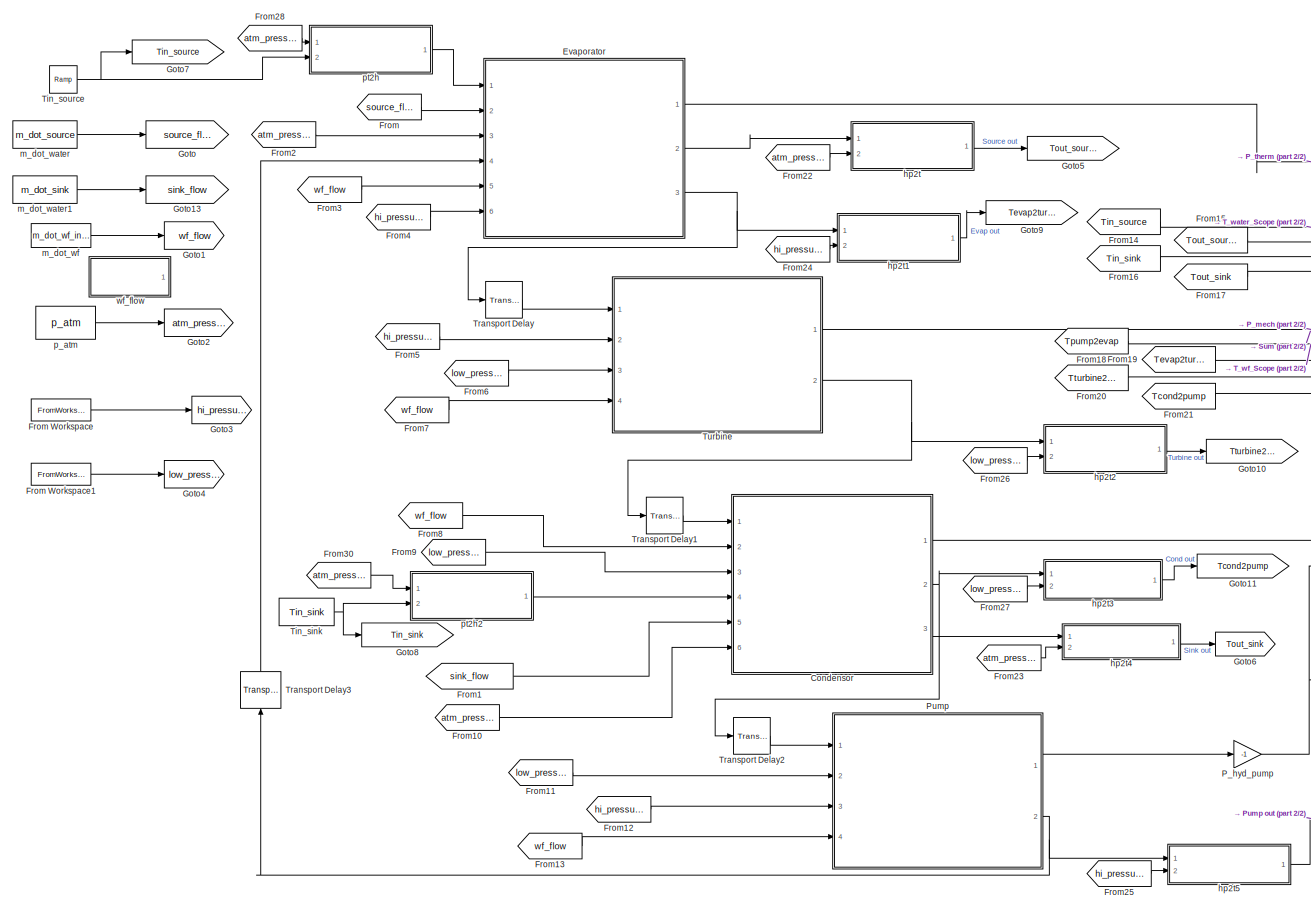
[diagram: root canvas - part 1/2, most of the canvas]
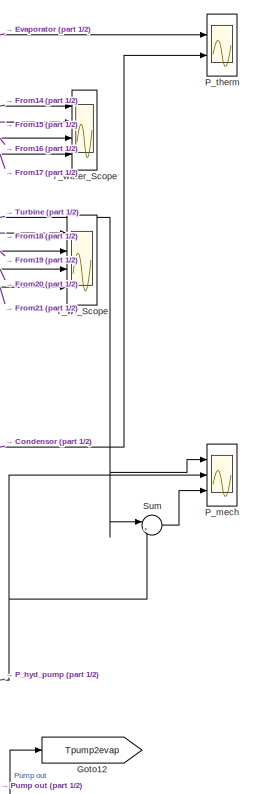
[diagram: root canvas - part 2/2, right side, full height]
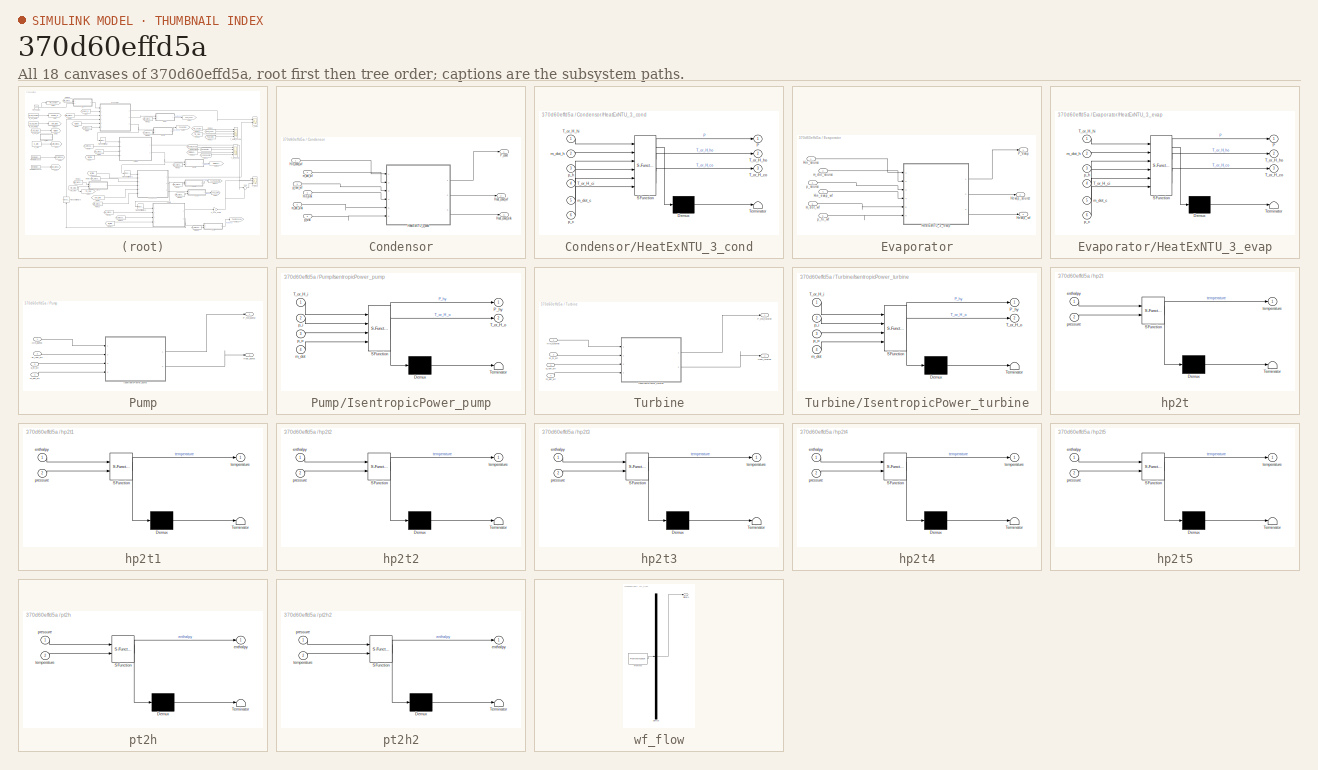
[diagram: thumbnail index - all 18 canvases of the model, root first then tree order]
MODEL slx_370d60effd5a
KIND model
CONFIG AbsTol = auto
CONFIG EnableMultiTasking = off
CONFIG FixedStep = .1
CONFIG MaxStep = auto
CONFIG MinStep = auto
CONFIG RelTol = 1e-3
CONFIG SampleTimeConstraint = Unconstrained
CONFIG Solver = FixedStepAuto
CONFIG SolverName = FixedStepAuto
CONFIG StartTime = 0.0
CONFIG StopTime = 75
BLOCK [SubSystem] Condensor
  Ports = [6, 3]
  RequestExecContextInheritance = off
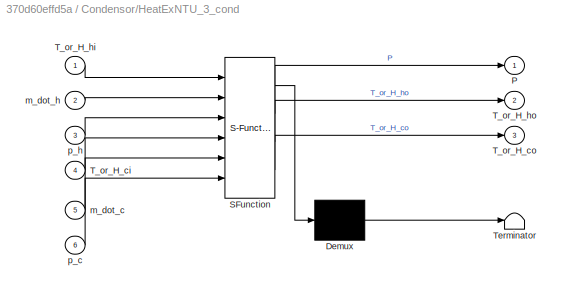
BLOCK [SubSystem] Condensor/HeatExNTU_3_cond
  Description = %HeatExNTU Summary \n%   This function calculates flow and outlet temperatures of a heat exchanger\n%   using the Number of Transfer Units (NTU) method as described in\n%   Fundementals of Heat and Mass Transfer by F. P. Incropera, D. P.\n%   DeWitt, T. L. Bergman & A. S. Lavine. The method can be used when only\n%   the inlet tempertures are known as opposed to inlet and outlet\n%   temperatures.\n%\n%  ...<+3098ch>
  ErrorFcn = Stateflow.Translate.translate
  PermitHierarchicalResolution = ExplicitOnly
  Ports = [6, 3]
  RequestExecContextInheritance = off
  SFBlockType = MATLAB Function
  TreatAsAtomicUnit = on
BLOCK [Demux] Condensor/HeatExNTU_3_cond/ Demux 
  Outputs = 1
  Ports = [1, 1]
BLOCK [S-Function] Condensor/HeatExNTU_3_cond/ SFunction 
  EnableBusSupport = on
  FunctionName = sf_sfun
  Parameters = A,HeatExType,T_or_H,U,fluid_c,fluid_h
  PortCounts = [6 4]
  Ports = [6, 4]
  SFcnIsStateOwnerBlock = off
  SFunctionDeploymentMode = off
  Tag = Stateflow S-Function ORC_test_simu 3
BLOCK [Terminator] Condensor/HeatExNTU_3_cond/ Terminator 
BLOCK [Outport] Condensor/HeatExNTU_3_cond/P
  IconDisplay = Port number
BLOCK [Inport] Condensor/HeatExNTU_3_cond/T_or_H_ci
  IconDisplay = Port number
  Port = 4
BLOCK [Outport] Condensor/HeatExNTU_3_cond/T_or_H_co
  IconDisplay = Port number
  Port = 3
BLOCK [Inport] Condensor/HeatExNTU_3_cond/T_or_H_hi
  IconDisplay = Port number
BLOCK [Outport] Condensor/HeatExNTU_3_cond/T_or_H_ho
  IconDisplay = Port number
  Port = 2
BLOCK [Inport] Condensor/HeatExNTU_3_cond/m_dot_c
  IconDisplay = Port number
  Port = 5
BLOCK [Inport] Condensor/HeatExNTU_3_cond/m_dot_h
  IconDisplay = Port number
  Port = 2
BLOCK [Inport] Condensor/HeatExNTU_3_cond/p_c
  IconDisplay = Port number
  Port = 6
BLOCK [Inport] Condensor/HeatExNTU_3_cond/p_h
  IconDisplay = Port number
  Port = 3
BLOCK [Inport] Condensor/Hin_cond_wf
  IconDisplay = Port number
BLOCK [Inport] Condensor/Hin_sink
  IconDisplay = Port number
  Port = 4
BLOCK [Outport] Condensor/Hout_cond_sink
  IconDisplay = Port number
  Port = 3
BLOCK [Outport] Condensor/Hout_cond_wf
  IconDisplay = Port number
  Port = 2
BLOCK [Outport] Condensor/P_cond
  IconDisplay = Port number
BLOCK [Inport] Condensor/m_dot_sink
  IconDisplay = Port number
  Port = 5
BLOCK [Inport] Condensor/m_dot_wf
  IconDisplay = Port number
  Port = 2
BLOCK [Inport] Condensor/p_low_wf
  IconDisplay = Port number
  Port = 3
BLOCK [Inport] Condensor/p_sink
  IconDisplay = Port number
  Port = 6
BLOCK [SubSystem] Evaporator
  Ports = [6, 3]
  RequestExecContextInheritance = off
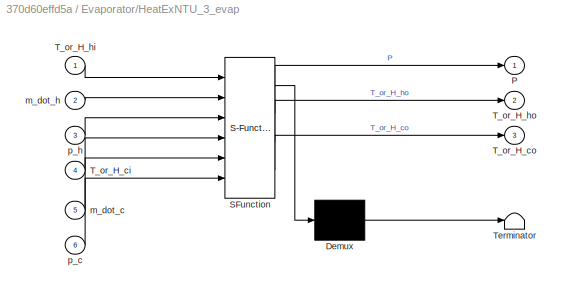
BLOCK [SubSystem] Evaporator/HeatExNTU_3_evap
  Description = %HeatExNTU Summary \n%   This function calculates flow and outlet temperatures of a heat exchanger\n%   using the Number of Transfer Units (NTU) method as described in\n%   Fundementals of Heat and Mass Transfer by F. P. Incropera, D. P.\n%   DeWitt, T. L. Bergman & A. S. Lavine. The method can be used when only\n%   the inlet tempertures are known as opposed to inlet and outlet\n%   temperatures.\n%\n%  ...<+3098ch>
  ErrorFcn = Stateflow.Translate.translate
  PermitHierarchicalResolution = ExplicitOnly
  Ports = [6, 3]
  RequestExecContextInheritance = off
  SFBlockType = MATLAB Function
  TreatAsAtomicUnit = on
BLOCK [Demux] Evaporator/HeatExNTU_3_evap/ Demux 
  Outputs = 1
  Ports = [1, 1]
BLOCK [S-Function] Evaporator/HeatExNTU_3_evap/ SFunction 
  EnableBusSupport = on
  FunctionName = sf_sfun
  Parameters = A,HeatExType,T_or_H,U,fluid_c,fluid_h
  PortCounts = [6 4]
  Ports = [6, 4]
  SFcnIsStateOwnerBlock = off
  SFunctionDeploymentMode = off
  Tag = Stateflow S-Function ORC_test_simu 2
BLOCK [Terminator] Evaporator/HeatExNTU_3_evap/ Terminator 
BLOCK [Outport] Evaporator/HeatExNTU_3_evap/P
  IconDisplay = Port number
BLOCK [Inport] Evaporator/HeatExNTU_3_evap/T_or_H_ci
  IconDisplay = Port number
  Port = 4
BLOCK [Outport] Evaporator/HeatExNTU_3_evap/T_or_H_co
  IconDisplay = Port number
  Port = 3
BLOCK [Inport] Evaporator/HeatExNTU_3_evap/T_or_H_hi
  IconDisplay = Port number
BLOCK [Outport] Evaporator/HeatExNTU_3_evap/T_or_H_ho
  IconDisplay = Port number
  Port = 2
BLOCK [Inport] Evaporator/HeatExNTU_3_evap/m_dot_c
  IconDisplay = Port number
  Port = 5
BLOCK [Inport] Evaporator/HeatExNTU_3_evap/m_dot_h
  IconDisplay = Port number
  Port = 2
BLOCK [Inport] Evaporator/HeatExNTU_3_evap/p_c
  IconDisplay = Port number
  Port = 6
BLOCK [Inport] Evaporator/HeatExNTU_3_evap/p_h
  IconDisplay = Port number
  Port = 3
BLOCK [Outport] Evaporator/Hevap_source
  IconDisplay = Port number
  Port = 2
BLOCK [Outport] Evaporator/Hevap_wf
  IconDisplay = Port number
  Port = 3
BLOCK [Inport] Evaporator/Hin_evap_wf
  IconDisplay = Port number
  Port = 4
BLOCK [Inport] Evaporator/Hin_source
  IconDisplay = Port number
BLOCK [Outport] Evaporator/P_evap
  IconDisplay = Port number
BLOCK [Inport] Evaporator/m_dot_source
  IconDisplay = Port number
  Port = 2
BLOCK [Inport] Evaporator/m_dot_wf
  IconDisplay = Port number
  Port = 5
BLOCK [Inport] Evaporator/p_hi_wf
  IconDisplay = Port number
  Port = 6
BLOCK [Inport] Evaporator/p_source
  IconDisplay = Port number
  Port = 3
BLOCK [From] From
  GotoTag = source_flow
BLOCK [FromWorkspace] From Workspace
  SampleTime = 0
  VariableName = p_hi
  ZeroCross = on
BLOCK [FromWorkspace] From Workspace1
  SampleTime = 0
  VariableName = p_low
  ZeroCross = on
BLOCK [From] From1
  GotoTag = sink_flow
BLOCK [From] From10
  GotoTag = atm_pressure
BLOCK [From] From11
  GotoTag = low_pressure
BLOCK [From] From12
  GotoTag = hi_pressure
BLOCK [From] From13
  GotoTag = wf_flow
BLOCK [From] From14
  GotoTag = Tin_source
BLOCK [From] From15
  GotoTag = Tout_source
BLOCK [From] From16
  GotoTag = Tin_sink
BLOCK [From] From17
  GotoTag = Tout_sink
BLOCK [From] From18
  GotoTag = Tpump2evap
BLOCK [From] From19
  GotoTag = Tevap2turbine
BLOCK [From] From2
  GotoTag = atm_pressure
BLOCK [From] From20
  GotoTag = Tturbine2cond
BLOCK [From] From21
  GotoTag = Tcond2pump
BLOCK [From] From22
  GotoTag = atm_pressure
BLOCK [From] From23
  GotoTag = atm_pressure
BLOCK [From] From24
  GotoTag = hi_pressure
BLOCK [From] From25
  GotoTag = hi_pressure
BLOCK [From] From26
  GotoTag = low_pressure
BLOCK [From] From27
  GotoTag = low_pressure
BLOCK [From] From28
  GotoTag = atm_pressure
BLOCK [From] From3
  GotoTag = wf_flow
BLOCK [From] From30
  GotoTag = atm_pressure
BLOCK [From] From4
  GotoTag = hi_pressure
BLOCK [From] From5
  GotoTag = hi_pressure
BLOCK [From] From6
  GotoTag = low_pressure
BLOCK [From] From7
  GotoTag = wf_flow
BLOCK [From] From8
  GotoTag = wf_flow
BLOCK [From] From9
  GotoTag = low_pressure
BLOCK [Goto] Goto
  GotoTag = source_flow
BLOCK [Goto] Goto1
  GotoTag = wf_flow
BLOCK [Goto] Goto10
  GotoTag = Tturbine2cond
BLOCK [Goto] Goto11
  GotoTag = Tcond2pump
BLOCK [Goto] Goto12
  GotoTag = Tpump2evap
BLOCK [Goto] Goto13
  GotoTag = sink_flow
BLOCK [Goto] Goto2
  GotoTag = atm_pressure
BLOCK [Goto] Goto3
  GotoTag = hi_pressure
BLOCK [Goto] Goto4
  GotoTag = low_pressure
BLOCK [Goto] Goto5
  GotoTag = Tout_source
BLOCK [Goto] Goto6
  GotoTag = Tout_sink
BLOCK [Goto] Goto7
  GotoTag = Tin_source
BLOCK [Goto] Goto8
  GotoTag = Tin_sink
BLOCK [Goto] Goto9
  GotoTag = Tevap2turbine
BLOCK [Gain] P_hyd_pump
  Gain = -1
  OutDataTypeStr = Inherit: Inherit via internal rule
  ParamDataTypeStr = Inherit: Inherit via internal rule
  SaturateOnIntegerOverflow = off
BLOCK [Scope] P_mech
  Floating = off
  NumInputPorts = 3
  Ports = [3]
  ScopeSpecificationString = Simulink.scopes.TimeScopeBlockCfg('CurrentConfiguration', extmgr.ConfigurationSet(extmgr.Configuration('Core','General UI',true),extmgr.Configuration('Core','Source UI',true),extmgr.Configuration('Sources','WiredSimulink',true,'DataLoggingVariableName','ScopeData1'),extmgr.Configuration('Visuals','Time Domain',true,'SerializedDisplays',{struct('MinYLimReal','-897.38911','MaxYLimReal','52162.90094'...<+1897ch>
BLOCK [Scope] P_therm
  Floating = off
  NumInputPorts = 2
  Ports = [2]
  ScopeSpecificationString = Simulink.scopes.TimeScopeBlockCfg('CurrentConfiguration', extmgr.ConfigurationSet(extmgr.Configuration('Core','General UI',true),extmgr.Configuration('Core','Source UI',true),extmgr.Configuration('Sources','WiredSimulink',true),extmgr.Configuration('Visuals','Time Domain',true,'SerializedDisplays',{struct('MinYLimReal','-342536.61594','MaxYLimReal','660607.75159','YLabelReal','','MinYLimMag','    ...<+1843ch>
BLOCK [SubSystem] Pump
  Ports = [4, 2]
  RequestExecContextInheritance = off
BLOCK [Inport] Pump/Hin_pump
  IconDisplay = Port number
BLOCK [Outport] Pump/Hout_pump
  IconDisplay = Port number
  Port = 2
BLOCK [SubSystem] Pump/IsentropicPower_pump
  ErrorFcn = Stateflow.Translate.translate
  PermitHierarchicalResolution = ExplicitOnly
  Ports = [4, 2]
  RequestExecContextInheritance = off
  SFBlockType = MATLAB Function
  TreatAsAtomicUnit = on
BLOCK [Demux] Pump/IsentropicPower_pump/ Demux 
  Outputs = 1
  Ports = [1, 1]
BLOCK [S-Function] Pump/IsentropicPower_pump/ SFunction 
  EnableBusSupport = on
  FunctionName = sf_sfun
  Parameters = T_or_H,fluid,isen_eff
  PortCounts = [4 3]
  Ports = [4, 3]
  SFcnIsStateOwnerBlock = off
  SFunctionDeploymentMode = off
  Tag = Stateflow S-Function ORC_test_simu 4
BLOCK [Terminator] Pump/IsentropicPower_pump/ Terminator 
BLOCK [Outport] Pump/IsentropicPower_pump/P_hy
  IconDisplay = Port number
BLOCK [Inport] Pump/IsentropicPower_pump/T_or_H_i
  IconDisplay = Port number
BLOCK [Outport] Pump/IsentropicPower_pump/T_or_H_o
  IconDisplay = Port number
  Port = 2
BLOCK [Inport] Pump/IsentropicPower_pump/m_dot
  IconDisplay = Port number
  Port = 4
BLOCK [Inport] Pump/IsentropicPower_pump/p_i
  IconDisplay = Port number
  Port = 2
BLOCK [Inport] Pump/IsentropicPower_pump/p_o
  IconDisplay = Port number
  Port = 3
BLOCK [Outport] Pump/P_hyd_pump
  IconDisplay = Port number
BLOCK [Inport] Pump/m_dot_wf
  IconDisplay = Port number
  Port = 4
BLOCK [Inport] Pump/p_hi_wf
  IconDisplay = Port number
  Port = 3
BLOCK [Inport] Pump/pi_low_wf
  IconDisplay = Port number
  Port = 2
BLOCK [Sum] Sum
  IconShape = round
  InputSameDT = off
  Inputs = |+-
  OutDataTypeStr = Inherit: Inherit via internal rule
  Ports = [2, 1]
  SaturateOnIntegerOverflow = off
BLOCK [Scope] T_water_Scope
  Floating = off
  NumInputPorts = 4
  Ports = [4]
  ScopeSpecificationString = Simulink.scopes.TimeScopeBlockCfg('CurrentConfiguration', extmgr.ConfigurationSet(extmgr.Configuration('Core','General UI',true),extmgr.Configuration('Core','Source UI',true),extmgr.Configuration('Sources','WiredSimulink',true,'DataLoggingVariableName','ScopeData1'),extmgr.Configuration('Visuals','Time Domain',true,'SerializedDisplays',{struct('MinYLimReal','269.76497','MaxYLimReal','374.98632','Y...<+1879ch>
BLOCK [Scope] T_wf_Scope
  Floating = off
  NumInputPorts = 4
  Ports = [4]
  ScopeSpecificationString = Simulink.scopes.TimeScopeBlockCfg('CurrentConfiguration', extmgr.ConfigurationSet(extmgr.Configuration('Core','General UI',true),extmgr.Configuration('Core','Source UI',true),extmgr.Configuration('Sources','WiredSimulink',true,'DataLoggingVariableName','ScopeData2'),extmgr.Configuration('Visuals','Time Domain',true,'SerializedDisplays',{struct('MinYLimReal','258.31875','MaxYLimReal','433.03188','Y...<+1884ch>
BLOCK [Constant] Tin_sink
  Value = Tin_sink
BLOCK [Reference] Tin_source  REF=simulink/Sources/Ramp
  Ports = [0, 1]
  SourceBlock = simulink/Sources/Ramp
  SourceProductBaseCode = SL
  SourceProductName = Simulink
  SourceType = Ramp
BLOCK [TransportDelay] Transport Delay
  Commented = through
  DelayTime = .02
  InitialOutput = 363
  Ports = [1, 1]
BLOCK [TransportDelay] Transport Delay1
  Commented = through
  DelayTime = .02
  InitialOutput = 363
  Ports = [1, 1]
BLOCK [TransportDelay] Transport Delay2
  Commented = through
  DelayTime = .02
  InitialOutput = 306
  Ports = [1, 1]
BLOCK [TransportDelay] Transport Delay3
  DelayTime = .02
  InitialOutput = 2.3e+05
  Ports = [1, 1]
  TransDelayFeedthrough = on
BLOCK [SubSystem] Turbine
  Ports = [4, 2]
  RequestExecContextInheritance = off
BLOCK [Inport] Turbine/Hin_turbine
  IconDisplay = Port number
BLOCK [Outport] Turbine/Hout_turbine
  IconDisplay = Port number
  Port = 2
BLOCK [SubSystem] Turbine/IsentropicPower_turbine
  ErrorFcn = Stateflow.Translate.translate
  PermitHierarchicalResolution = ExplicitOnly
  Ports = [4, 2]
  RequestExecContextInheritance = off
  SFBlockType = MATLAB Function
  TreatAsAtomicUnit = on
BLOCK [Demux] Turbine/IsentropicPower_turbine/ Demux 
  Outputs = 1
  Ports = [1, 1]
BLOCK [S-Function] Turbine/IsentropicPower_turbine/ SFunction 
  EnableBusSupport = on
  FunctionName = sf_sfun
  Parameters = T_or_H,fluid,isen_eff
  PortCounts = [4 3]
  Ports = [4, 3]
  SFcnIsStateOwnerBlock = off
  SFunctionDeploymentMode = off
  Tag = Stateflow S-Function ORC_test_simu 1
BLOCK [Terminator] Turbine/IsentropicPower_turbine/ Terminator 
BLOCK [Outport] Turbine/IsentropicPower_turbine/P_hy
  IconDisplay = Port number
BLOCK [Inport] Turbine/IsentropicPower_turbine/T_or_H_i
  IconDisplay = Port number
BLOCK [Outport] Turbine/IsentropicPower_turbine/T_or_H_o
  IconDisplay = Port number
  Port = 2
BLOCK [Inport] Turbine/IsentropicPower_turbine/m_dot
  IconDisplay = Port number
  Port = 4
BLOCK [Inport] Turbine/IsentropicPower_turbine/p_i
  IconDisplay = Port number
  Port = 2
BLOCK [Inport] Turbine/IsentropicPower_turbine/p_o
  IconDisplay = Port number
  Port = 3
BLOCK [Outport] Turbine/P_hyd_turbine
  IconDisplay = Port number
BLOCK [Inport] Turbine/m_dot_wf
  IconDisplay = Port number
  Port = 4
BLOCK [Inport] Turbine/p_low_wf
  IconDisplay = Port number
  Port = 3
BLOCK [Inport] Turbine/pi_hi_wf
  IconDisplay = Port number
  Port = 2
BLOCK [SubSystem] hp2t
  ErrorFcn = Stateflow.Translate.translate
  PermitHierarchicalResolution = ExplicitOnly
  Ports = [2, 1]
  RequestExecContextInheritance = off
  SFBlockType = MATLAB Function
  TreatAsAtomicUnit = on
BLOCK [Demux] hp2t/ Demux 
  Outputs = 1
  Ports = [1, 1]
BLOCK [S-Function] hp2t/ SFunction 
  EnableBusSupport = on
  FunctionName = sf_sfun
  Parameters = fluid_handle
  PortCounts = [2 2]
  Ports = [2, 2]
  SFcnIsStateOwnerBlock = off
  SFunctionDeploymentMode = off
  Tag = Stateflow S-Function ORC_test_simu 5
BLOCK [Terminator] hp2t/ Terminator 
BLOCK [Inport] hp2t/enthalpy
  IconDisplay = Port number
BLOCK [Inport] hp2t/pressure
  IconDisplay = Port number
  Port = 2
BLOCK [Outport] hp2t/temperature
  IconDisplay = Port number
BLOCK [SubSystem] hp2t1
  ErrorFcn = Stateflow.Translate.translate
  PermitHierarchicalResolution = ExplicitOnly
  Ports = [2, 1]
  RequestExecContextInheritance = off
  SFBlockType = MATLAB Function
  TreatAsAtomicUnit = on
BLOCK [Demux] hp2t1/ Demux 
  Outputs = 1
  Ports = [1, 1]
BLOCK [S-Function] hp2t1/ SFunction 
  EnableBusSupport = on
  FunctionName = sf_sfun
  Parameters = fluid_handle
  PortCounts = [2 2]
  Ports = [2, 2]
  SFcnIsStateOwnerBlock = off
  SFunctionDeploymentMode = off
  Tag = Stateflow S-Function ORC_test_simu 6
BLOCK [Terminator] hp2t1/ Terminator 
BLOCK [Inport] hp2t1/enthalpy
  IconDisplay = Port number
BLOCK [Inport] hp2t1/pressure
  IconDisplay = Port number
  Port = 2
BLOCK [Outport] hp2t1/temperature
  IconDisplay = Port number
BLOCK [SubSystem] hp2t2
  ErrorFcn = Stateflow.Translate.translate
  PermitHierarchicalResolution = ExplicitOnly
  Ports = [2, 1]
  RequestExecContextInheritance = off
  SFBlockType = MATLAB Function
  TreatAsAtomicUnit = on
BLOCK [Demux] hp2t2/ Demux 
  Outputs = 1
  Ports = [1, 1]
BLOCK [S-Function] hp2t2/ SFunction 
  EnableBusSupport = on
  FunctionName = sf_sfun
  Parameters = fluid_handle
  PortCounts = [2 2]
  Ports = [2, 2]
  SFcnIsStateOwnerBlock = off
  SFunctionDeploymentMode = off
  Tag = Stateflow S-Function ORC_test_simu 7
BLOCK [Terminator] hp2t2/ Terminator 
BLOCK [Inport] hp2t2/enthalpy
  IconDisplay = Port number
BLOCK [Inport] hp2t2/pressure
  IconDisplay = Port number
  Port = 2
BLOCK [Outport] hp2t2/temperature
  IconDisplay = Port number
BLOCK [SubSystem] hp2t3
  ErrorFcn = Stateflow.Translate.translate
  PermitHierarchicalResolution = ExplicitOnly
  Ports = [2, 1]
  RequestExecContextInheritance = off
  SFBlockType = MATLAB Function
  TreatAsAtomicUnit = on
BLOCK [Demux] hp2t3/ Demux 
  Outputs = 1
  Ports = [1, 1]
BLOCK [S-Function] hp2t3/ SFunction 
  EnableBusSupport = on
  FunctionName = sf_sfun
  Parameters = fluid_handle
  PortCounts = [2 2]
  Ports = [2, 2]
  SFcnIsStateOwnerBlock = off
  SFunctionDeploymentMode = off
  Tag = Stateflow S-Function ORC_test_simu 8
BLOCK [Terminator] hp2t3/ Terminator 
BLOCK [Inport] hp2t3/enthalpy
  IconDisplay = Port number
BLOCK [Inport] hp2t3/pressure
  IconDisplay = Port number
  Port = 2
BLOCK [Outport] hp2t3/temperature
  IconDisplay = Port number
BLOCK [SubSystem] hp2t4
  ErrorFcn = Stateflow.Translate.translate
  PermitHierarchicalResolution = ExplicitOnly
  Ports = [2, 1]
  RequestExecContextInheritance = off
  SFBlockType = MATLAB Function
  TreatAsAtomicUnit = on
BLOCK [Demux] hp2t4/ Demux 
  Outputs = 1
  Ports = [1, 1]
BLOCK [S-Function] hp2t4/ SFunction 
  EnableBusSupport = on
  FunctionName = sf_sfun
  Parameters = fluid_handle
  PortCounts = [2 2]
  Ports = [2, 2]
  SFcnIsStateOwnerBlock = off
  SFunctionDeploymentMode = off
  Tag = Stateflow S-Function ORC_test_simu 9
BLOCK [Terminator] hp2t4/ Terminator 
BLOCK [Inport] hp2t4/enthalpy
  IconDisplay = Port number
BLOCK [Inport] hp2t4/pressure
  IconDisplay = Port number
  Port = 2
BLOCK [Outport] hp2t4/temperature
  IconDisplay = Port number
BLOCK [SubSystem] hp2t5
  ErrorFcn = Stateflow.Translate.translate
  PermitHierarchicalResolution = ExplicitOnly
  Ports = [2, 1]
  RequestExecContextInheritance = off
  SFBlockType = MATLAB Function
  TreatAsAtomicUnit = on
BLOCK [Demux] hp2t5/ Demux 
  Outputs = 1
  Ports = [1, 1]
BLOCK [S-Function] hp2t5/ SFunction 
  EnableBusSupport = on
  FunctionName = sf_sfun
  Parameters = fluid_handle
  PortCounts = [2 2]
  Ports = [2, 2]
  SFcnIsStateOwnerBlock = off
  SFunctionDeploymentMode = off
  Tag = Stateflow S-Function ORC_test_simu 10
BLOCK [Terminator] hp2t5/ Terminator 
BLOCK [Inport] hp2t5/enthalpy
  IconDisplay = Port number
BLOCK [Inport] hp2t5/pressure
  IconDisplay = Port number
  Port = 2
BLOCK [Outport] hp2t5/temperature
  IconDisplay = Port number
BLOCK [Constant] m_dot_water
  Value = m_dot_source
BLOCK [Constant] m_dot_water1
  Value = m_dot_sink
BLOCK [Constant] m_dot_wf
  Value = m_dot_wf_init
BLOCK [Constant] p_atm
  Value = p_atm
BLOCK [SubSystem] pt2h
  ErrorFcn = Stateflow.Translate.translate
  PermitHierarchicalResolution = ExplicitOnly
  Ports = [2, 1]
  RequestExecContextInheritance = off
  SFBlockType = MATLAB Function
  TreatAsAtomicUnit = on
BLOCK [Demux] pt2h/ Demux 
  Outputs = 1
  Ports = [1, 1]
BLOCK [S-Function] pt2h/ SFunction 
  EnableBusSupport = on
  FunctionName = sf_sfun
  Parameters = fluid_handle
  PortCounts = [2 2]
  Ports = [2, 2]
  SFcnIsStateOwnerBlock = off
  SFunctionDeploymentMode = off
  Tag = Stateflow S-Function ORC_test_simu 11
BLOCK [Terminator] pt2h/ Terminator 
BLOCK [Outport] pt2h/enthalpy
  IconDisplay = Port number
BLOCK [Inport] pt2h/pressure
  IconDisplay = Port number
BLOCK [Inport] pt2h/temperature
  IconDisplay = Port number
  Port = 2
BLOCK [SubSystem] pt2h2
  ErrorFcn = Stateflow.Translate.translate
  PermitHierarchicalResolution = ExplicitOnly
  Ports = [2, 1]
  RequestExecContextInheritance = off
  SFBlockType = MATLAB Function
  TreatAsAtomicUnit = on
BLOCK [Demux] pt2h2/ Demux 
  Outputs = 1
  Ports = [1, 1]
BLOCK [S-Function] pt2h2/ SFunction 
  EnableBusSupport = on
  FunctionName = sf_sfun
  Parameters = fluid_handle
  PortCounts = [2 2]
  Ports = [2, 2]
  SFcnIsStateOwnerBlock = off
  SFunctionDeploymentMode = off
  Tag = Stateflow S-Function ORC_test_simu 13
BLOCK [Terminator] pt2h2/ Terminator 
BLOCK [Outport] pt2h2/enthalpy
  IconDisplay = Port number
BLOCK [Inport] pt2h2/pressure
  IconDisplay = Port number
BLOCK [Inport] pt2h2/temperature
  IconDisplay = Port number
  Port = 2
BLOCK [SubSystem] wf_flow
  ClipboardFcn = sigbuilder_block('clipboard');
  CloseFcn = sigbuilder_block('close');
  Commented = on
  ContinueFcn = sigbuilder_block('continue');
  CopyFcn = sigbuilder_block('copy');
  DeleteFcn = sigbuilder_block('delete');
  LoadFcn = sigbuilder_block('load',[319.5 153 550.5 359.25 ]);
  MaskHideContents = on
  ModelCloseFcn = sigbuilder_block('modelClose');
  NameChangeFcn = sigbuilder_block('namechange');
  OpenFcn = sigbuilder_block('open',[319.5 207 550.5 399.75 ]);
  PauseFcn = sigbuilder_block('pause');
  Ports = [0, 1]
  PreSaveFcn = sigbuilder_block('preSave');
  RequestExecContextInheritance = off
  StartFcn = sigbuilder_block('start');
  StopFcn = sigbuilder_block('stop');
  Tag = STV Subsys
BLOCK [Demux] wf_flow/Demux
  Outputs = 1
  Ports = [1, 1]
  Tag = STV Demux
BLOCK [FromWorkspace] wf_flow/FromWs
  SampleTime = 0
  Tag = STV FromWs
  VariableName = tuvar
  ZeroCross = on
BLOCK [Outport] wf_flow/Signal 1
  IconDisplay = Port number
  Tag = STV Outport
LINE Condensor/HeatExNTU_3_cond:1 -> Condensor/P_cond:1
LINE Condensor/HeatExNTU_3_cond:2 -> Condensor/Hout_cond_wf:1
LINE Condensor/HeatExNTU_3_cond:3 -> Condensor/Hout_cond_sink:1
LINE Condensor/Hin_cond_wf:1 -> Condensor/HeatExNTU_3_cond:1
LINE Condensor/Hin_sink:1 -> Condensor/HeatExNTU_3_cond:4
LINE Condensor/m_dot_sink:1 -> Condensor/HeatExNTU_3_cond:5
LINE Condensor/m_dot_wf:1 -> Condensor/HeatExNTU_3_cond:2
LINE Condensor/p_low_wf:1 -> Condensor/HeatExNTU_3_cond:3
LINE Condensor/p_sink:1 -> Condensor/HeatExNTU_3_cond:6
LINE Condensor:1 -> P_therm:2
NET Condensor:2 -> Transport Delay2:1, hp2t3:1
LINE Condensor:3 -> hp2t4:1
LINE Evaporator/HeatExNTU_3_evap:1 -> Evaporator/P_evap:1
LINE Evaporator/HeatExNTU_3_evap:2 -> Evaporator/Hevap_source:1
LINE Evaporator/HeatExNTU_3_evap:3 -> Evaporator/Hevap_wf:1
LINE Evaporator/Hin_evap_wf:1 -> Evaporator/HeatExNTU_3_evap:4
LINE Evaporator/Hin_source:1 -> Evaporator/HeatExNTU_3_evap:1
LINE Evaporator/m_dot_source:1 -> Evaporator/HeatExNTU_3_evap:2
LINE Evaporator/m_dot_wf:1 -> Evaporator/HeatExNTU_3_evap:5
LINE Evaporator/p_hi_wf:1 -> Evaporator/HeatExNTU_3_evap:6
LINE Evaporator/p_source:1 -> Evaporator/HeatExNTU_3_evap:3
LINE Evaporator:1 -> P_therm:1
LINE Evaporator:2 -> hp2t:1
NET Evaporator:3 -> Transport Delay:1, hp2t1:1
LINE From Workspace1:1 -> Goto4:1
LINE From Workspace:1 -> Goto3:1
LINE From10:1 -> Condensor:6
LINE From11:1 -> Pump:2
LINE From12:1 -> Pump:3
LINE From13:1 -> Pump:4
LINE From14:1 -> T_water_Scope:1
LINE From15:1 -> T_water_Scope:2
LINE From16:1 -> T_water_Scope:3
LINE From17:1 -> T_water_Scope:4
LINE From18:1 -> T_wf_Scope:1
LINE From19:1 -> T_wf_Scope:2
LINE From1:1 -> Condensor:5
LINE From20:1 -> T_wf_Scope:3
LINE From21:1 -> T_wf_Scope:4
LINE From22:1 -> hp2t:2
LINE From23:1 -> hp2t4:2
LINE From24:1 -> hp2t1:2
LINE From25:1 -> hp2t5:2
LINE From26:1 -> hp2t2:2
LINE From27:1 -> hp2t3:2
LINE From28:1 -> pt2h:1
LINE From2:1 -> Evaporator:3
LINE From30:1 -> pt2h2:1
LINE From3:1 -> Evaporator:5
LINE From4:1 -> Evaporator:6
LINE From5:1 -> Turbine:2
LINE From6:1 -> Turbine:3
LINE From7:1 -> Turbine:4
LINE From8:1 -> Condensor:2
LINE From9:1 -> Condensor:3
LINE From:1 -> Evaporator:2
NET P_hyd_pump:1 -> P_mech:2, Sum:2
LINE Pump/Hin_pump:1 -> Pump/IsentropicPower_pump:1
LINE Pump/IsentropicPower_pump:1 -> Pump/P_hyd_pump:1
LINE Pump/IsentropicPower_pump:2 -> Pump/Hout_pump:1
LINE Pump/m_dot_wf:1 -> Pump/IsentropicPower_pump:4
LINE Pump/p_hi_wf:1 -> Pump/IsentropicPower_pump:3
LINE Pump/pi_low_wf:1 -> Pump/IsentropicPower_pump:2
LINE Pump:1 -> P_hyd_pump:1
NET Pump:2 -> Transport Delay3:1, hp2t5:1
LINE Sum:1 -> P_mech:3
NET Tin_sink:1 -> Goto8:1, pt2h2:2
NET Tin_source:1 -> Goto7:1, pt2h:2
LINE Transport Delay1:1 -> Condensor:1
LINE Transport Delay2:1 -> Pump:1
LINE Transport Delay3:1 -> Evaporator:4
LINE Transport Delay:1 -> Turbine:1
LINE Turbine/Hin_turbine:1 -> Turbine/IsentropicPower_turbine:1
LINE Turbine/IsentropicPower_turbine:1 -> Turbine/P_hyd_turbine:1
LINE Turbine/IsentropicPower_turbine:2 -> Turbine/Hout_turbine:1
LINE Turbine/m_dot_wf:1 -> Turbine/IsentropicPower_turbine:4
LINE Turbine/p_low_wf:1 -> Turbine/IsentropicPower_turbine:3
LINE Turbine/pi_hi_wf:1 -> Turbine/IsentropicPower_turbine:2
NET Turbine:1 -> P_mech:1, Sum:1
NET Turbine:2 -> Transport Delay1:1, hp2t2:1
LINE hp2t1:1 -> Goto9:1
LINE hp2t2:1 -> Goto10:1
LINE hp2t3:1 -> Goto11:1
LINE hp2t4:1 -> Goto6:1
LINE hp2t5:1 -> Goto12:1
LINE hp2t:1 -> Goto5:1
LINE m_dot_water1:1 -> Goto13:1
LINE m_dot_water:1 -> Goto:1
LINE m_dot_wf:1 -> Goto1:1
LINE p_atm:1 -> Goto2:1
LINE pt2h2:1 -> Condensor:4
LINE pt2h:1 -> Evaporator:1
note: NET lines group one-source signal fan-out (src -> all destinations, sorted); 1:1 wires keep LINE
CHART Turbine/IsentropicPower_turbine states=1 transitions=1
  STATE_LABEL 'eML_blk_kernel()'
  STATE_LABEL 'SCRIPT:\nfunction [ P_hy, T_or_H_o ] = IsentropicPower_block( T_or_H_i, p_i, p_o, m_dot, T_or_H,  isen_eff, fluid)\n% function [ P_hy ] = IsentropicPower( T_i, T_o, p_i, p_o, m_dot, fluid, isen_eff )\n%EXPANDER Summary of this function\n%   This process calculates the mechanical power provided or required by a \n%   generic expander device/system. Turbines and other expanders provide\n%   mechanical pow...<+3608ch>'
CHART Evaporator/HeatExNTU_3_evap states=1 transitions=1
  STATE_LABEL 'eML_blk_kernel()'
  STATE_LABEL 'SCRIPT:\nfunction [ P, T_or_H_ho, T_or_H_co ] = HeatExNTU_3_block( T_or_H_hi, m_dot_h, p_h,  ...\n    T_or_H_ci, m_dot_c, p_c, fluid_h, fluid_c, HeatExType, U, A, T_or_H )\n\n%HeatExNTU Summary \n%   This function calculates flow and outlet temperatures of a heat exchanger\n%   using the Number of Transfer Units (NTU) method as described in\n%   Fundementals of Heat and Mass Transfer by F. P. Incropera, ...<+3608ch>'
CHART Condensor/HeatExNTU_3_cond states=1 transitions=1
  STATE_LABEL 'eML_blk_kernel()'
  STATE_LABEL 'SCRIPT:\nfunction [ P, T_or_H_ho, T_or_H_co ] = HeatExNTU_3_block( T_or_H_hi, m_dot_h, p_h,  ...\n    T_or_H_ci, m_dot_c, p_c, fluid_h, fluid_c, HeatExType, U, A, T_or_H )\n\n%HeatExNTU Summary \n%   This function calculates flow and outlet temperatures of a heat exchanger\n%   using the Number of Transfer Units (NTU) method as described in\n%   Fundementals of Heat and Mass Transfer by F. P. Incropera, ...<+3608ch>'
CHART Pump/IsentropicPower_pump states=1 transitions=1
  STATE_LABEL 'eML_blk_kernel()'
  STATE_LABEL 'SCRIPT:\nfunction [ P_hy, T_or_H_o ] = IsentropicPower_block( T_or_H_i, p_i, p_o, m_dot, T_or_H,  isen_eff, fluid)\n% function [ P_hy ] = IsentropicPower( T_i, T_o, p_i, p_o, m_dot, fluid, isen_eff )\n%EXPANDER Summary of this function\n%   This process calculates the mechanical power provided or required by a \n%   generic expander device/system. Turbines and other expanders provide\n%   mechanical pow...<+3608ch>'
CHART hp2t states=1 transitions=1
  STATE_LABEL 'eML_blk_kernel()'
  STATE_LABEL 'SCRIPT:\nfunction temperature  = hp2t(enthalpy,pressure, fluid_handle)\n%HP2T Summary of this function goes here\n%   This function takes caluculates the temperature of a fluid based off of\n%   its enthalpy and pressure using the Cool Prob library. The fluid handle\n%   must already be generated and input in order to calculate the output\n%   values.\n\nbuffer_size = 255;\nierr = 0;\nb = (1:1:buffer_size);...<+674ch>'  <repeated x6 — deduplicated; at blocks: hp2t, hp2t1, hp2t2, hp2t3, hp2t4, hp2t5>
CHART hp2t1 states=1 transitions=1
  STATE_LABEL 'eML_blk_kernel()'
CHART hp2t2 states=1 transitions=1
  STATE_LABEL 'eML_blk_kernel()'
CHART hp2t3 states=1 transitions=1
  STATE_LABEL 'eML_blk_kernel()'
CHART hp2t4 states=1 transitions=1
  STATE_LABEL 'eML_blk_kernel()'
CHART hp2t5 states=1 transitions=1
  STATE_LABEL 'eML_blk_kernel()'
CHART pt2h states=1 transitions=1
  STATE_LABEL 'eML_blk_kernel()'
  STATE_LABEL 'SCRIPT:\nfunction enthalpy  = pt2h(fluid_handle,pressure,temperature)\n%PT2H Summary of this function goes here\n%   This function takes caluculates the enthalpy of a fluid based off of\n%   its temperature and pressure using the Cool Prob library. The fluid \n%   handle must already be generated and input in order to calculate the \n%   output values.\n\nbuffer_size = 255;\nierr = 0;\nb = (1:1:buffer_size)...<+667ch>'
CHART pt2h2 states=1 transitions=1
  STATE_LABEL 'eML_blk_kernel()'
  STATE_LABEL 'SCRIPT:\nfunction enthalpy  = pt2h(fluid_handle,pressure,temperature)\n%PT2H Summary of this function goes here\n%   This function takes caluculates the enthalpy of a fluid based off of\n%   its temperature and pressure using the Cool Prob library. The fluid \n%   handle must already be generated and input in order to calculate the \n%   output values.\n\nbuffer_size = 255;\nierr = 0;\nb = (1:1:buffer_size)...<+667ch>'
